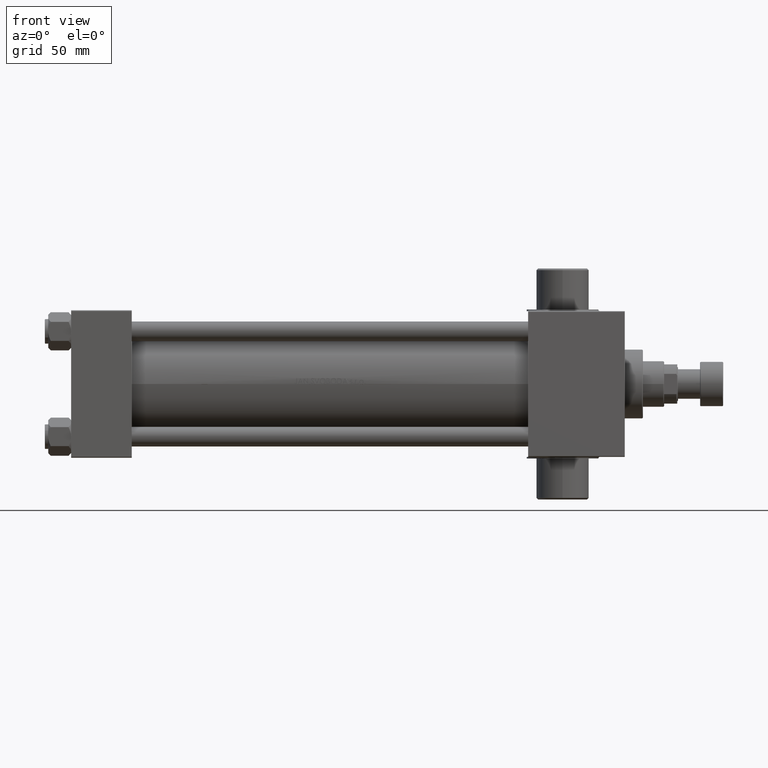
[diagram: clean part render]
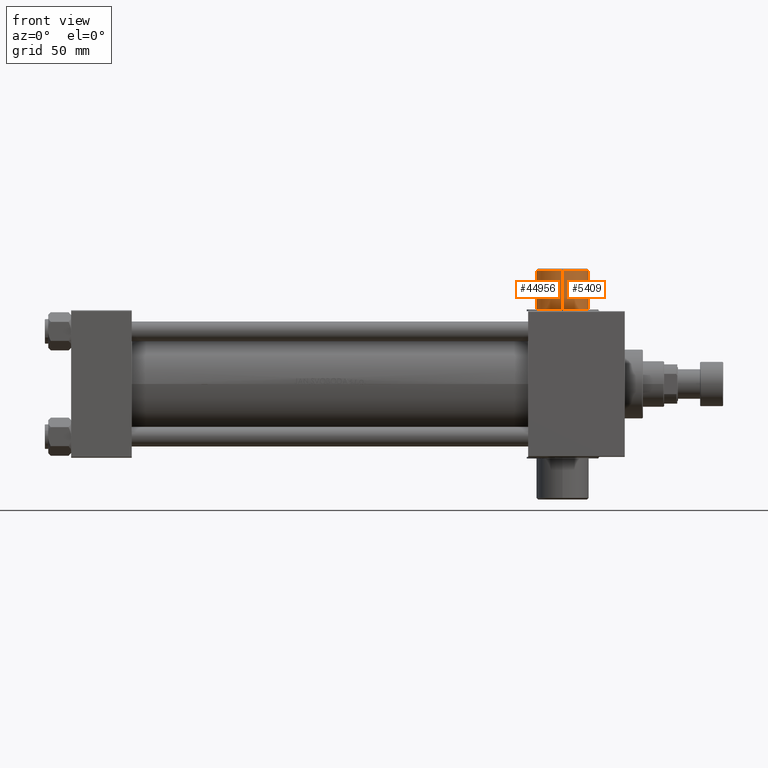
[diagram: same view with one multi-face feature highlighted, each face labeled with its STEP entity id]
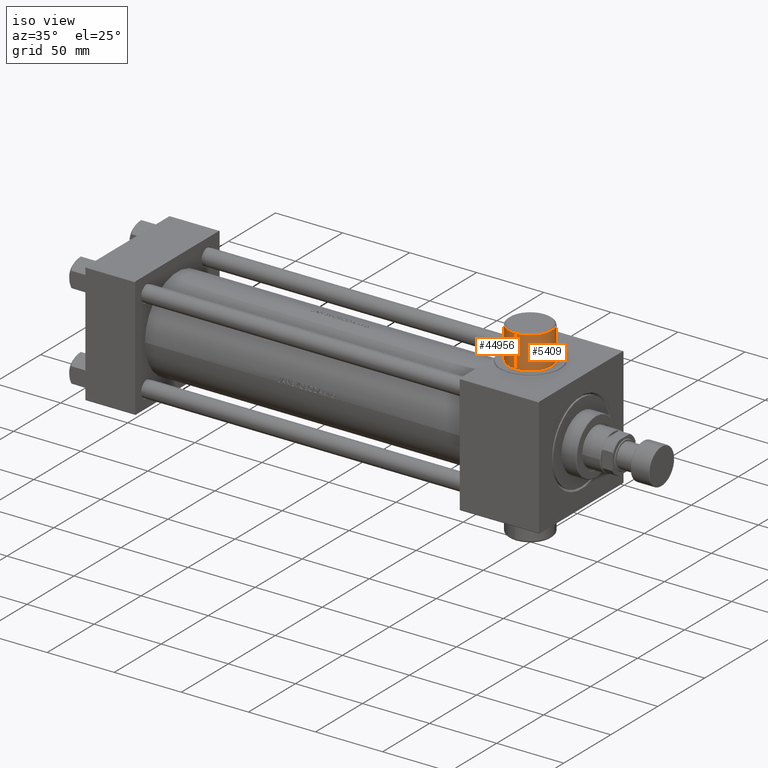
[diagram: same view with one multi-face feature highlighted, each face labeled with its STEP entity id]
A machine part, front view. The highlighted faces form ONE feature: a constant-radius fillet chain: 2 tangent blend faces with common blend radius 16 mm. The faces share edges in the B-rep.
A second angle (iso view) of the same feature is appended — it is thin or edge-on in the first view.
Their STEP definitions:
[1] entity #5409 (Cylinder):
#599 = FACE_OUTER_BOUND ( 'NONE', #12145, .T. ) ;
#5409 = ADVANCED_FACE ( 'NONE', ( #599 ), #29630, .T. ) ;
#5755 = CARTESIAN_POINT ( 'NONE',  ( 300.0000000000000000, -69.50000000000008527, 16.00000000000002132 ) ) ;
#8517 = CARTESIAN_POINT ( 'NONE',  ( 300.0000000000000000, -69.50000000000008527, -16.00000000000002842 ) ) ;
#9443 = ORIENTED_EDGE ( 'NONE', *, *, #43202, .T. ) ;
#9486 = CARTESIAN_POINT ( 'NONE',  ( 300.0000000000000000, -70.50000000000000000, 16.00000000000002132 ) ) ;
#9768 = CARTESIAN_POINT ( 'NONE',  ( 300.0000000000000000, -70.50000000000000000, -16.00000000000002842 ) ) ;
#10324 = VERTEX_POINT ( 'NONE', #5755 ) ;
#11426 = DIRECTION ( 'NONE',  ( 0.000000000000000000, 1.000000000000000000, 8.673617379884030542E-17 ) ) ;
#12145 = EDGE_LOOP ( 'NONE', ( #25729, #12516, #9443, #30571 ) ) ;
#12516 = ORIENTED_EDGE ( 'NONE', *, *, #19045, .T. ) ;
#14292 = DIRECTION ( 'NONE',  ( 0.000000000000000000, 0.000000000000000000, -1.000000000000000000 ) ) ;
#14377 = AXIS2_PLACEMENT_3D ( 'NONE', #38418, #20092, #15604 ) ;
#14884 = DIRECTION ( 'NONE',  ( 0.000000000000000000, 0.000000000000000000, 1.000000000000000000 ) ) ;
#15604 = DIRECTION ( 'NONE',  ( 0.000000000000000000, 0.000000000000000000, -1.000000000000000000 ) ) ;
#16018 = AXIS2_PLACEMENT_3D ( 'NONE', #26528, #19157, #14884 ) ;
#16162 = DIRECTION ( 'NONE',  ( -0.000000000000000000, 1.000000000000000000, 8.673617379884036705E-17 ) ) ;
#16810 = VECTOR ( 'NONE', #20944, 1000.000000000000000 ) ;
#18890 = VERTEX_POINT ( 'NONE', #8517 ) ;
#19045 = EDGE_CURVE ( 'NONE', #18890, #28605, #21181, .T. ) ;
#19157 = DIRECTION ( 'NONE',  ( -0.000000000000000000, 1.000000000000000000, 8.673617379884036705E-17 ) ) ;
#19783 = CARTESIAN_POINT ( 'NONE',  ( 300.0000000000000000, -45.49999999999999289, 16.00000000000002487 ) ) ;
#20092 = DIRECTION ( 'NONE',  ( 0.000000000000000000, -1.000000000000000000, -8.673617379884036705E-17 ) ) ;
#20944 = DIRECTION ( 'NONE',  ( -0.000000000000000000, 1.000000000000000000, 8.673617379884036705E-17 ) ) ;
#21181 = LINE ( 'NONE', #9768, #16810 ) ;
#22649 = CIRCLE ( 'NONE', #24902, 16.00000000000002487 ) ;
#24902 = AXIS2_PLACEMENT_3D ( 'NONE', #32843, #11426, #14292 ) ;
#25729 = ORIENTED_EDGE ( 'NONE', *, *, #39968, .T. ) ;
#26528 = CARTESIAN_POINT ( 'NONE',  ( 300.0000000000000000, -70.50000000000000000, -2.255140518769849223E-15 ) ) ;
#27733 = EDGE_CURVE ( 'NONE', #10324, #42205, #42071, .T. ) ;
#28605 = VERTEX_POINT ( 'NONE', #38290 ) ;
#29630 = CYLINDRICAL_SURFACE ( 'NONE', #16018, 16.00000000000002487 ) ;
#30571 = ORIENTED_EDGE ( 'NONE', *, *, #27733, .F. ) ;
#32607 = CIRCLE ( 'NONE', #14377, 16.00000000000002487 ) ;
#32843 = CARTESIAN_POINT ( 'NONE',  ( 300.0000000000000000, -69.50000000000008527, -2.168404344971017151E-15 ) ) ;
#36827 = VECTOR ( 'NONE', #16162, 1000.000000000000000 ) ;
#38290 = CARTESIAN_POINT ( 'NONE',  ( 300.0000000000000000, -45.49999999999999289, -16.00000000000002487 ) ) ;
#38418 = CARTESIAN_POINT ( 'NONE',  ( 300.0000000000000000, -45.49999999999999289, -8.673617379884004657E-17 ) ) ;
#39968 = EDGE_CURVE ( 'NONE', #10324, #18890, #22649, .T. ) ;
#42071 = LINE ( 'NONE', #9486, #36827 ) ;
#42205 = VERTEX_POINT ( 'NONE', #19783 ) ;
#43202 = EDGE_CURVE ( 'NONE', #28605, #42205, #32607, .T. ) ;
[2] entity #44956 (Cylinder):
#3188 = ORIENTED_EDGE ( 'NONE', *, *, #27733, .T. ) ;
#5755 = CARTESIAN_POINT ( 'NONE',  ( 300.0000000000000000, -69.50000000000008527, 16.00000000000002132 ) ) ;
#6361 = EDGE_CURVE ( 'NONE', #42205, #28605, #37360, .T. ) ;
#8517 = CARTESIAN_POINT ( 'NONE',  ( 300.0000000000000000, -69.50000000000008527, -16.00000000000002842 ) ) ;
#9486 = CARTESIAN_POINT ( 'NONE',  ( 300.0000000000000000, -70.50000000000000000, 16.00000000000002132 ) ) ;
#9768 = CARTESIAN_POINT ( 'NONE',  ( 300.0000000000000000, -70.50000000000000000, -16.00000000000002842 ) ) ;
#10324 = VERTEX_POINT ( 'NONE', #5755 ) ;
#11015 = ORIENTED_EDGE ( 'NONE', *, *, #19045, .F. ) ;
#14639 = EDGE_CURVE ( 'NONE', #18890, #10324, #42117, .T. ) ;
#14790 = AXIS2_PLACEMENT_3D ( 'NONE', #20237, #34766, #16674 ) ;
#16162 = DIRECTION ( 'NONE',  ( -0.000000000000000000, 1.000000000000000000, 8.673617379884036705E-17 ) ) ;
#16674 = DIRECTION ( 'NONE',  ( 0.000000000000000000, 0.000000000000000000, -1.000000000000000000 ) ) ;
#16810 = VECTOR ( 'NONE', #20944, 1000.000000000000000 ) ;
#18890 = VERTEX_POINT ( 'NONE', #8517 ) ;
#19045 = EDGE_CURVE ( 'NONE', #18890, #28605, #21181, .T. ) ;
#19470 = FACE_OUTER_BOUND ( 'NONE', #38175, .T. ) ;
#19783 = CARTESIAN_POINT ( 'NONE',  ( 300.0000000000000000, -45.49999999999999289, 16.00000000000002487 ) ) ;
#20237 = CARTESIAN_POINT ( 'NONE',  ( 300.0000000000000000, -69.50000000000008527, -2.168404344971017151E-15 ) ) ;
#20383 = DIRECTION ( 'NONE',  ( 0.000000000000000000, 0.000000000000000000, -1.000000000000000000 ) ) ;
#20944 = DIRECTION ( 'NONE',  ( -0.000000000000000000, 1.000000000000000000, 8.673617379884036705E-17 ) ) ;
#21181 = LINE ( 'NONE', #9768, #16810 ) ;
#23213 = ORIENTED_EDGE ( 'NONE', *, *, #14639, .T. ) ;
#27070 = CYLINDRICAL_SURFACE ( 'NONE', #41835, 16.00000000000002487 ) ;
#27733 = EDGE_CURVE ( 'NONE', #10324, #42205, #42071, .T. ) ;
#28605 = VERTEX_POINT ( 'NONE', #38290 ) ;
#31329 = CARTESIAN_POINT ( 'NONE',  ( 300.0000000000000000, -45.49999999999999289, -8.673617379884004657E-17 ) ) ;
#33845 = ORIENTED_EDGE ( 'NONE', *, *, #6361, .T. ) ;
#34766 = DIRECTION ( 'NONE',  ( 0.000000000000000000, 1.000000000000000000, 8.673617379884030542E-17 ) ) ;
#36827 = VECTOR ( 'NONE', #16162, 1000.000000000000000 ) ;
#37107 = CARTESIAN_POINT ( 'NONE',  ( 300.0000000000000000, -70.50000000000000000, -2.255140518769849223E-15 ) ) ;
#37360 = CIRCLE ( 'NONE', #43400, 16.00000000000002487 ) ;
#38175 = EDGE_LOOP ( 'NONE', ( #11015, #23213, #3188, #33845 ) ) ;
#38290 = CARTESIAN_POINT ( 'NONE',  ( 300.0000000000000000, -45.49999999999999289, -16.00000000000002487 ) ) ;
#38939 = DIRECTION ( 'NONE',  ( 0.000000000000000000, -1.000000000000000000, -8.673617379884036705E-17 ) ) ;
#40895 = DIRECTION ( 'NONE',  ( -0.000000000000000000, 1.000000000000000000, 8.673617379884036705E-17 ) ) ;
#41835 = AXIS2_PLACEMENT_3D ( 'NONE', #37107, #40895, #44924 ) ;
#42071 = LINE ( 'NONE', #9486, #36827 ) ;
#42117 = CIRCLE ( 'NONE', #14790, 16.00000000000002487 ) ;
#42205 = VERTEX_POINT ( 'NONE', #19783 ) ;
#43400 = AXIS2_PLACEMENT_3D ( 'NONE', #31329, #38939, #20383 ) ;
#44924 = DIRECTION ( 'NONE',  ( 0.000000000000000000, 0.000000000000000000, 1.000000000000000000 ) ) ;
#44956 = ADVANCED_FACE ( 'NONE', ( #19470 ), #27070, .T. ) ;